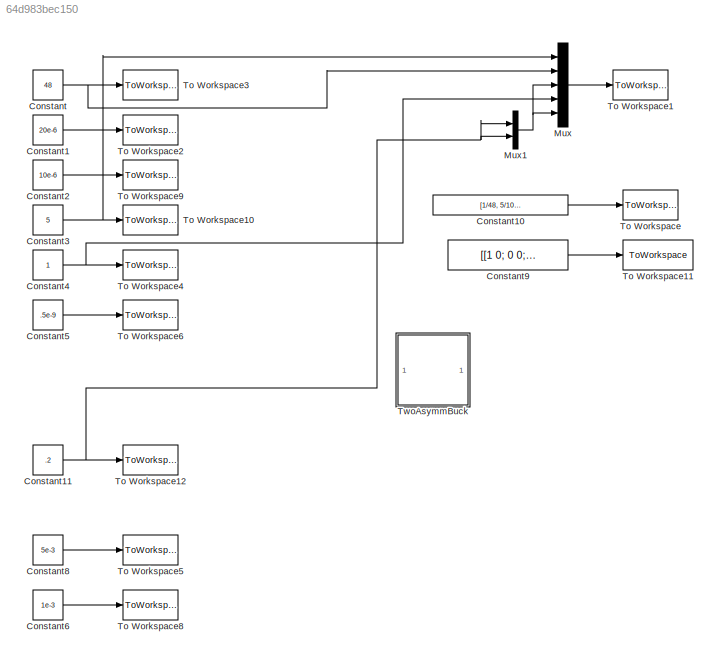
MODEL slx_64d983bec150
KIND model
CONFIG AbsTol = auto
CONFIG EnableMultiTasking = off
CONFIG FixedStep = auto
CONFIG MaxStep = auto
CONFIG MinStep = auto
CONFIG RelTol = 1e-3
CONFIG SampleTimeConstraint = Unconstrained
CONFIG SolverName = VariableStepAuto
CONFIG StartTime = 0.0
CONFIG StopTime = 10.0
BLOCK [Constant] Constant
  Value = 48
BLOCK [Constant] Constant1
  Value = 20e-6
BLOCK [Constant] Constant10
  Value = [1/48, 5/100, 47/48, 5/100]*2e-6
BLOCK [Constant] Constant11
  Value = .2
BLOCK [Constant] Constant2
  Value = 10e-6
BLOCK [Constant] Constant3
  Value = 5
BLOCK [Constant] Constant4
BLOCK [Constant] Constant5
  Value = .5e-9
BLOCK [Constant] Constant6
  Value = 1e-3
BLOCK [Constant] Constant8
  Value = 5e-3
BLOCK [Constant] Constant9
  Value = [[1 0; 0 0; 0 1; 0 0 ], zeros(4,2), [1 0; 0 0; 0 1; 0 0 ], zeros(4,2)]
BLOCK [Mux] Mux
  DisplayOption = bar
  Inputs = 5
BLOCK [Mux] Mux1
  DisplayOption = bar
  Inputs = 2
BLOCK [ToWorkspace] To Workspace
  FixptAsFi = on
  MaxDataPoints = inf
  SampleTime = -1
  VariableName = ts
BLOCK [ToWorkspace] To Workspace1
  FixptAsFi = on
  MaxDataPoints = inf
  SampleTime = -1
  VariableName = us
BLOCK [ToWorkspace] To Workspace10
  FixptAsFi = on
  MaxDataPoints = inf
  SampleTime = -1
  VariableName = Io
BLOCK [ToWorkspace] To Workspace11
  FixptAsFi = on
  MaxDataPoints = inf
  SampleTime = -1
  VariableName = swvec
BLOCK [ToWorkspace] To Workspace12
  FixptAsFi = on
  MaxDataPoints = inf
  SampleTime = -1
  VariableName = Vf
BLOCK [ToWorkspace] To Workspace2
  FixptAsFi = on
  MaxDataPoints = inf
  SampleTime = -1
  VariableName = Lf
BLOCK [ToWorkspace] To Workspace3
  FixptAsFi = on
  MaxDataPoints = inf
  SampleTime = -1
  VariableName = Vg
BLOCK [ToWorkspace] To Workspace4
  FixptAsFi = on
  MaxDataPoints = inf
  SampleTime = -1
  VariableName = Io2
BLOCK [ToWorkspace] To Workspace5
  FixptAsFi = on
  MaxDataPoints = inf
  SampleTime = -1
  VariableName = ron
BLOCK [ToWorkspace] To Workspace6
  FixptAsFi = on
  MaxDataPoints = inf
  SampleTime = -1
  VariableName = Coss
BLOCK [ToWorkspace] To Workspace8
  FixptAsFi = on
  MaxDataPoints = inf
  SampleTime = -1
  VariableName = Rin
BLOCK [ToWorkspace] To Workspace9
  FixptAsFi = on
  MaxDataPoints = inf
  SampleTime = -1
  VariableName = Co
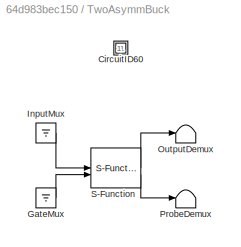
BLOCK [SubSystem] TwoAsymmBuck
  CopyFcn = plecs('sl', 203);
  DeleteFcn = plecs('sl', 205);
  DestroyFcn = plecs('sl', 207);
  ErrorFcn = plerrorfcn
  InitFcn = plecs('sl', 214);
  LoadFcn = plecs('sl', 200);
  NameChangeFcn = plecs('sl', 210);
  OpenFcn = plecs('sl', 202);
  PostSaveFcn = plecs('sl', 201);
  PreCopyFcn = plecs('sl', 216);
  PreSaveFcn = plecs('sl', 211);
  StartFcn = plecs('sl', 208);
  StopFcn = plecs('sl', 209);
  UndoDeleteFcn = plecs('sl', 206);
BLOCK [SubSystem] TwoAsymmBuck/ CircuitID60 
BLOCK [Ground] TwoAsymmBuck/ GateMux 
BLOCK [Ground] TwoAsymmBuck/ InputMux 
BLOCK [Terminator] TwoAsymmBuck/ OutputDemux 
BLOCK [Terminator] TwoAsymmBuck/ ProbeDemux 
BLOCK [S-Function] TwoAsymmBuck/ S-Function 
  EnableBusSupport = off
  FunctionName = plecs
  SFcnIsStateOwnerBlock = off
  SFunctionDeploymentMode = off
LINE Constant10:1 -> To Workspace:1
NET Constant11:1 -> Mux1:1, Mux1:2, To Workspace12:1
LINE Constant1:1 -> To Workspace2:1
LINE Constant2:1 -> To Workspace9:1
NET Constant3:1 -> Mux:1, To Workspace10:1
NET Constant4:1 -> Mux:4, To Workspace4:1
LINE Constant5:1 -> To Workspace6:1
LINE Constant6:1 -> To Workspace8:1
LINE Constant8:1 -> To Workspace5:1
LINE Constant9:1 -> To Workspace11:1
NET Constant:1 -> Mux:2, To Workspace3:1
NET Mux1:1 -> Mux:3, Mux:5
LINE Mux:1 -> To Workspace1:1
note: NET lines group one-source signal fan-out (src -> all destinations, sorted); 1:1 wires keep LINE
